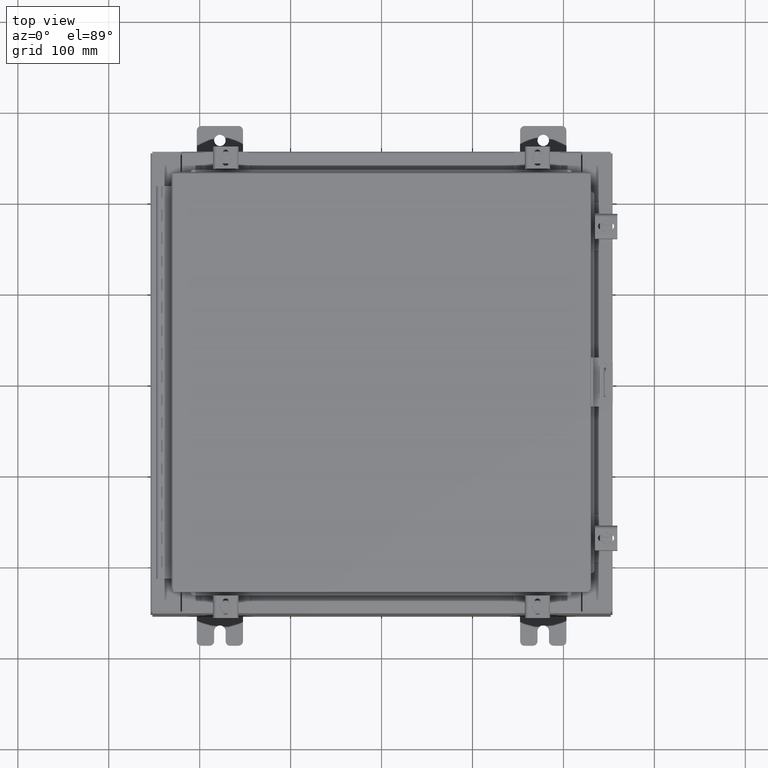
[diagram: clean part render]
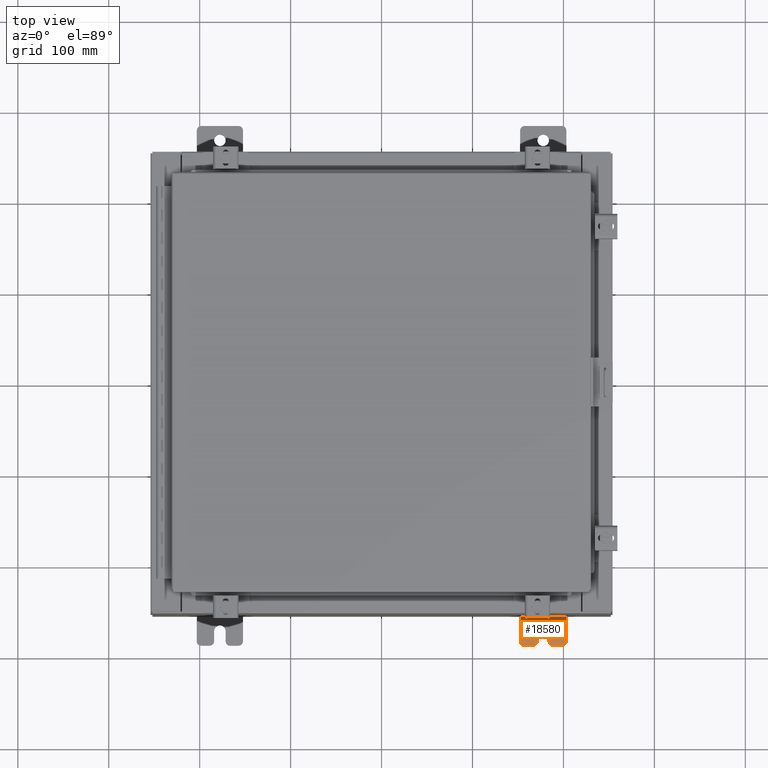
[diagram: same view with one face highlighted and labeled with its STEP entity id]
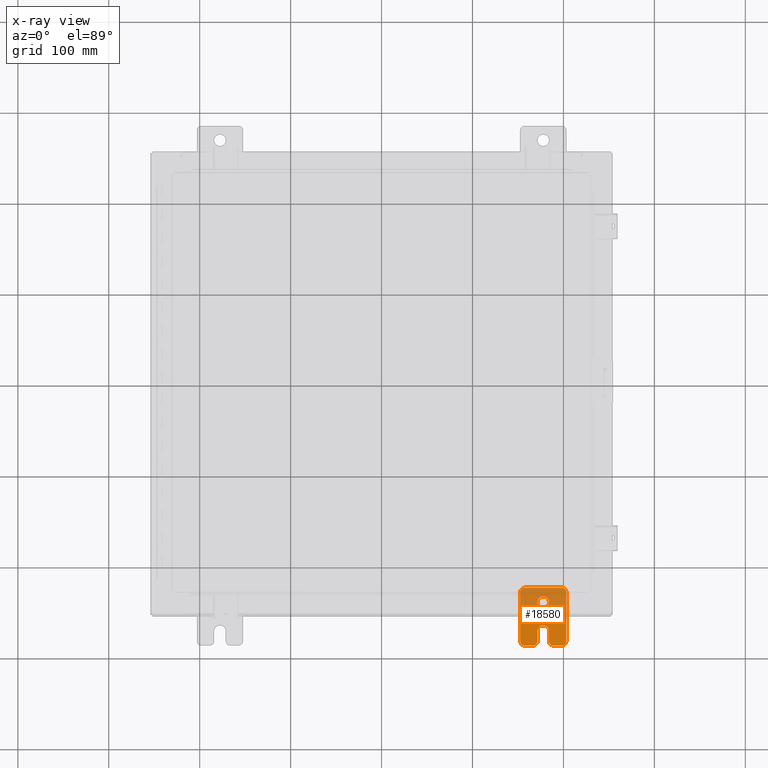
[diagram: x-ray of the same camera — body ghosted, the highlighted face saturated]
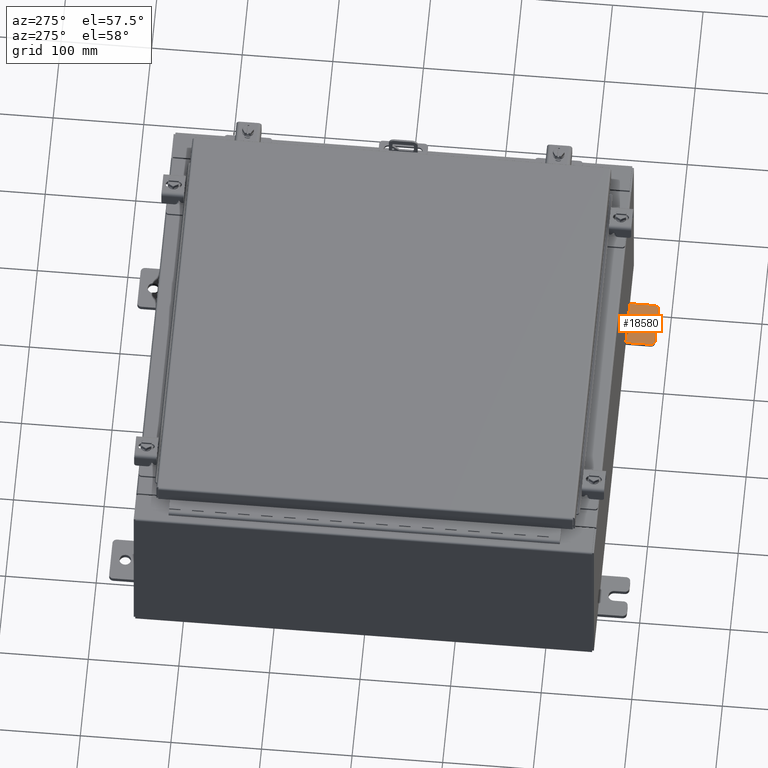
[diagram: same view with one face highlighted and labeled with its STEP entity id]
A machine part, top view. The second image highlights one B-rep face of the part: STEP entity #18580.
The next image is the same camera in x-ray: the body ghosted, the highlighted face saturated — about 53% of this face is hidden behind the body in this view.
A second angle (auxiliary view) of the same face is appended — the face is thin or edge-on in the first view.
In plain terms, the highlighted planar face has unit normal (0, 0, 1).
Its self-contained STEP definition (entity closure, byte-faithful):
#50 = LINE ( 'NONE', #25900, #22800 ) ;
#363 = EDGE_CURVE ( 'NONE', #13464, #22528, #11796, .T. ) ;
#553 = CARTESIAN_POINT ( 'NONE',  ( 0.0000000000000000000, -1.060000000000001600, 0.8099999999999978300 ) ) ;
#661 = AXIS2_PLACEMENT_3D ( 'NONE', #25391, #25788, #8164 ) ;
#839 = DIRECTION ( 'NONE',  ( 6.556435184794182400E-016, 1.000000000000000000, 0.0000000000000000000 ) ) ;
#1367 = EDGE_CURVE ( 'NONE', #28421, #29073, #27763, .T. ) ;
#1503 = LINE ( 'NONE', #24558, #12877 ) ;
#1622 = CARTESIAN_POINT ( 'NONE',  ( 4.780733988912460100E-016, -0.6249999999999993300, -0.2499999999999998600 ) ) ;
#1940 = VECTOR ( 'NONE', #839, 39.37007874015748100 ) ;
#2185 = LINE ( 'NONE', #19826, #13571 ) ;
#2505 = CARTESIAN_POINT ( 'NONE',  ( 0.0000000000000000000, 1.249999999999994700, -0.8100000000000092700 ) ) ;
#2765 = ORIENTED_EDGE ( 'NONE', *, *, #5763, .T. ) ;
#2828 = DIRECTION ( 'NONE',  ( 0.0000000000000000000, 0.0000000000000000000, -1.000000000000000000 ) ) ;
#2906 = CIRCLE ( 'NONE', #12947, 0.2499999999999999200 ) ;
#3237 = DIRECTION ( 'NONE',  ( 0.0000000000000000000, 1.639108796198553600E-015, 1.000000000000000000 ) ) ;
#3316 = CARTESIAN_POINT ( 'NONE',  ( 0.0000000000000000000, -1.250000000000002200, 0.9999999999999992200 ) ) ;
#3613 = EDGE_CURVE ( 'NONE', #4213, #17901, #17021, .T. ) ;
#3677 = CIRCLE ( 'NONE', #15709, 0.1900000000000011100 ) ;
#3826 = ORIENTED_EDGE ( 'NONE', *, *, #14750, .T. ) ;
#3832 = CARTESIAN_POINT ( 'NONE',  ( 0.0000000000000000000, -0.6249999999999992200, 0.2500000000000005000 ) ) ;
#4213 = VERTEX_POINT ( 'NONE', #13962 ) ;
#4895 = CARTESIAN_POINT ( 'NONE',  ( 4.039428427013647300E-016, 0.6249999999999992200, -9.783840404509077400E-018 ) ) ;
#4903 = ORIENTED_EDGE ( 'NONE', *, *, #11322, .T. ) ;
#4996 = CARTESIAN_POINT ( 'NONE',  ( 0.0000000000000000000, -1.060000000000001200, 0.9999999999999988900 ) ) ;
#5023 = CARTESIAN_POINT ( 'NONE',  ( 0.0000000000000000000, 0.0000000000000000000, 0.0000000000000000000 ) ) ;
#5496 = CARTESIAN_POINT ( 'NONE',  ( 0.0000000000000000000, -1.250000000000003100, 0.4400000000000020000 ) ) ;
#5761 = VECTOR ( 'NONE', #20543, 39.37007874015748100 ) ;
#5763 = EDGE_CURVE ( 'NONE', #29073, #20549, #12523, .T. ) ;
#5941 = EDGE_CURVE ( 'NONE', #9539, #28421, #2185, .T. ) ;
#6102 = DIRECTION ( 'NONE',  ( 1.000000000000000000, -0.0000000000000000000, -5.163192708025532000E-017 ) ) ;
#6448 = CARTESIAN_POINT ( 'NONE',  ( 0.0000000000000000000, -1.250000000000005300, -0.8100000000000047200 ) ) ;
#6458 = ORIENTED_EDGE ( 'NONE', *, *, #28623, .F. ) ;
#6468 = VECTOR ( 'NONE', #7878, 39.37007874015748100 ) ;
#6570 = LINE ( 'NONE', #12162, #1940 ) ;
#7018 = EDGE_CURVE ( 'NONE', #8802, #9539, #25622, .T. ) ;
#7083 = LINE ( 'NONE', #7741, #18494 ) ;
#7166 = DIRECTION ( 'NONE',  ( -5.163192708025533800E-017, 0.0000000000000000000, -1.000000000000000000 ) ) ;
#7275 = CIRCLE ( 'NONE', #26100, 0.2499999999999999200 ) ;
#7741 = CARTESIAN_POINT ( 'NONE',  ( 0.0000000000000000000, -1.250000000000005600, -1.000000000000006200 ) ) ;
#7878 = DIRECTION ( 'NONE',  ( 0.0000000000000000000, -1.639108796198553600E-015, -1.000000000000000000 ) ) ;
#7976 = CIRCLE ( 'NONE', #17937, 0.1900000000000011100 ) ;
#8164 = DIRECTION ( 'NONE',  ( 0.0000000000000000000, 0.0000000000000000000, -1.000000000000000000 ) ) ;
#8507 = ORIENTED_EDGE ( 'NONE', *, *, #17401, .T. ) ;
#8543 = ORIENTED_EDGE ( 'NONE', *, *, #1367, .T. ) ;
#8598 = CARTESIAN_POINT ( 'NONE',  ( 0.0000000000000000000, 1.249999999999997300, 0.8099999999999935000 ) ) ;
#8599 = EDGE_CURVE ( 'NONE', #12359, #4213, #7083, .T. ) ;
#8802 = VERTEX_POINT ( 'NONE', #3832 ) ;
#9024 = CARTESIAN_POINT ( 'NONE',  ( 4.780733988912460100E-016, -0.6249999999999993300, 5.858939755051854500E-017 ) ) ;
#9539 = VERTEX_POINT ( 'NONE', #1622 ) ;
#9611 = DIRECTION ( 'NONE',  ( 1.000000000000000000, 0.0000000000000000000, -0.0000000000000000000 ) ) ;
#9659 = VERTEX_POINT ( 'NONE', #13331 ) ;
#9734 = AXIS2_PLACEMENT_3D ( 'NONE', #11212, #27125, #13507 ) ;
#9806 = EDGE_LOOP ( 'NONE', ( #11830, #21237, #3826, #17662, #4903, #17298, #20359, #8543, #2765, #10202, #20055, #12845, #8507, #25690 ) ) ;
#10020 = DIRECTION ( 'NONE',  ( 0.0000000000000000000, 1.000000000000000000, -1.639108796198558100E-015 ) ) ;
#10202 = ORIENTED_EDGE ( 'NONE', *, *, #25338, .T. ) ;
#11212 = CARTESIAN_POINT ( 'NONE',  ( 0.0000000000000000000, -1.060000000000002100, 0.4400000000000016700 ) ) ;
#11260 = DIRECTION ( 'NONE',  ( 1.000000000000000000, 0.0000000000000000000, -0.0000000000000000000 ) ) ;
#11306 = DIRECTION ( 'NONE',  ( -6.523827964459551700E-016, -1.000000000000000000, 0.0000000000000000000 ) ) ;
#11322 = EDGE_CURVE ( 'NONE', #21968, #8802, #6570, .T. ) ;
#11790 = CIRCLE ( 'NONE', #20337, 0.1900000000000011100 ) ;
#11796 = LINE ( 'NONE', #21728, #5761 ) ;
#11830 = ORIENTED_EDGE ( 'NONE', *, *, #363, .T. ) ;
#12149 = CARTESIAN_POINT ( 'NONE',  ( 0.0000000000000000000, -1.250000000000004700, -0.4400000000000002200 ) ) ;
#12162 = CARTESIAN_POINT ( 'NONE',  ( 6.829619984160658000E-017, -1.250000000000003800, 0.2500000000000005000 ) ) ;
#12359 = VERTEX_POINT ( 'NONE', #21365 ) ;
#12523 = LINE ( 'NONE', #3316, #6468 ) ;
#12532 = DIRECTION ( 'NONE',  ( 1.000000000000000000, 0.0000000000000000000, -0.0000000000000000000 ) ) ;
#12845 = ORIENTED_EDGE ( 'NONE', *, *, #3613, .T. ) ;
#12877 = VECTOR ( 'NONE', #24653, 39.37007874015748100 ) ;
#12947 = AXIS2_PLACEMENT_3D ( 'NONE', #19736, #6102, #22015 ) ;
#13331 = CARTESIAN_POINT ( 'NONE',  ( 0.0000000000000000000, -1.250000000000002400, 0.8099999999999980500 ) ) ;
#13464 = VERTEX_POINT ( 'NONE', #26262 ) ;
#13507 = DIRECTION ( 'NONE',  ( 0.0000000000000000000, 0.0000000000000000000, -1.000000000000000000 ) ) ;
#13571 = VECTOR ( 'NONE', #17525, 39.37007874015748100 ) ;
#13578 = CARTESIAN_POINT ( 'NONE',  ( 0.0000000000000000000, 1.059999999999993600, -0.8100000000000089400 ) ) ;
#13962 = CARTESIAN_POINT ( 'NONE',  ( 0.0000000000000000000, 1.059999999999993400, -1.000000000000010000 ) ) ;
#14150 = FACE_OUTER_BOUND ( 'NONE', #9806, .T. ) ;
#14205 = VERTEX_POINT ( 'NONE', #8598 ) ;
#14402 = CARTESIAN_POINT ( 'NONE',  ( 1.928684683526964400E-016, -1.060000000000003400, -0.2499999999999994400 ) ) ;
#14564 = CARTESIAN_POINT ( 'NONE',  ( 4.168508244714285900E-016, 0.6249999999999992200, 0.2499999999999999200 ) ) ;
#14750 = EDGE_CURVE ( 'NONE', #9659, #20257, #1503, .T. ) ;
#15709 = AXIS2_PLACEMENT_3D ( 'NONE', #553, #16453, #2828 ) ;
#15893 = DIRECTION ( 'NONE',  ( 0.0000000000000000000, 0.0000000000000000000, -1.000000000000000000 ) ) ;
#16453 = DIRECTION ( 'NONE',  ( 1.000000000000000000, 0.0000000000000000000, -0.0000000000000000000 ) ) ;
#17021 = CIRCLE ( 'NONE', #18647, 0.1900000000000011100 ) ;
#17107 = CARTESIAN_POINT ( 'NONE',  ( 3.910348609313009100E-016, 0.6249999999999992200, -0.2499999999999999200 ) ) ;
#17298 = ORIENTED_EDGE ( 'NONE', *, *, #7018, .T. ) ;
#17401 = EDGE_CURVE ( 'NONE', #17901, #14205, #50, .T. ) ;
#17525 = DIRECTION ( 'NONE',  ( -6.556435184794182400E-016, -1.000000000000000000, -1.639108796198545600E-016 ) ) ;
#17662 = ORIENTED_EDGE ( 'NONE', *, *, #29489, .T. ) ;
#17901 = VERTEX_POINT ( 'NONE', #2505 ) ;
#17937 = AXIS2_PLACEMENT_3D ( 'NONE', #26151, #12532, #28471 ) ;
#18494 = VECTOR ( 'NONE', #10020, 39.37007874015748100 ) ;
#18580 = ADVANCED_FACE ( 'NONE', ( #26213, #14150 ), #27723, .T. ) ;
#18647 = AXIS2_PLACEMENT_3D ( 'NONE', #13578, #29523, #15893 ) ;
#19065 = CARTESIAN_POINT ( 'NONE',  ( 1.928684683526972300E-016, -1.060000000000002100, 0.2500000000000005000 ) ) ;
#19736 = CARTESIAN_POINT ( 'NONE',  ( 4.039428427013647300E-016, 0.6249999999999992200, -9.783840404509077400E-018 ) ) ;
#19826 = CARTESIAN_POINT ( 'NONE',  ( 4.780733988912460100E-016, -0.6249999999999993300, -0.2499999999999993900 ) ) ;
#20049 = EDGE_CURVE ( 'NONE', #23714, #26382, #7275, .T. ) ;
#20055 = ORIENTED_EDGE ( 'NONE', *, *, #8599, .T. ) ;
#20257 = VERTEX_POINT ( 'NONE', #5496 ) ;
#20337 = AXIS2_PLACEMENT_3D ( 'NONE', #24867, #11260, #27174 ) ;
#20359 = ORIENTED_EDGE ( 'NONE', *, *, #5941, .T. ) ;
#20543 = DIRECTION ( 'NONE',  ( 0.0000000000000000000, -1.000000000000000000, 1.639108796198558100E-015 ) ) ;
#20549 = VERTEX_POINT ( 'NONE', #6448 ) ;
#20833 = DIRECTION ( 'NONE',  ( 1.000000000000000000, -0.0000000000000000000, -5.163192708025532000E-017 ) ) ;
#21237 = ORIENTED_EDGE ( 'NONE', *, *, #23134, .T. ) ;
#21365 = CARTESIAN_POINT ( 'NONE',  ( 0.0000000000000000000, -1.060000000000004500, -1.000000000000006400 ) ) ;
#21728 = CARTESIAN_POINT ( 'NONE',  ( 0.0000000000000000000, 1.249999999999997600, 0.9999999999999951200 ) ) ;
#21968 = VERTEX_POINT ( 'NONE', #19065 ) ;
#22015 = DIRECTION ( 'NONE',  ( -5.163192708025533800E-017, 0.0000000000000000000, -1.000000000000000000 ) ) ;
#22176 = CIRCLE ( 'NONE', #9734, 0.1900000000000011400 ) ;
#22528 = VERTEX_POINT ( 'NONE', #4996 ) ;
#22800 = VECTOR ( 'NONE', #3237, 39.37007874015748100 ) ;
#23134 = EDGE_CURVE ( 'NONE', #22528, #9659, #3677, .T. ) ;
#23714 = VERTEX_POINT ( 'NONE', #14564 ) ;
#24558 = CARTESIAN_POINT ( 'NONE',  ( 0.0000000000000000000, -1.250000000000002200, 0.9999999999999992200 ) ) ;
#24653 = DIRECTION ( 'NONE',  ( 0.0000000000000000000, -1.639108796198553600E-015, -1.000000000000000000 ) ) ;
#24867 = CARTESIAN_POINT ( 'NONE',  ( 0.0000000000000000000, -1.060000000000004100, -0.8100000000000050500 ) ) ;
#24921 = DIRECTION ( 'NONE',  ( -1.000000000000000000, 6.523827964459549700E-016, 5.163192708025532000E-017 ) ) ;
#25338 = EDGE_CURVE ( 'NONE', #20549, #12359, #11790, .T. ) ;
#25391 = CARTESIAN_POINT ( 'NONE',  ( 0.0000000000000000000, -1.060000000000003400, -0.4400000000000005000 ) ) ;
#25523 = DIRECTION ( 'NONE',  ( -0.0000000000000000000, 0.0000000000000000000, -1.000000000000000000 ) ) ;
#25559 = AXIS2_PLACEMENT_3D ( 'NONE', #9024, #24921, #11306 ) ;
#25618 = ORIENTED_EDGE ( 'NONE', *, *, #20049, .F. ) ;
#25622 = CIRCLE ( 'NONE', #25559, 0.2499999999999999200 ) ;
#25690 = ORIENTED_EDGE ( 'NONE', *, *, #29170, .T. ) ;
#25788 = DIRECTION ( 'NONE',  ( 1.000000000000000000, 0.0000000000000000000, -0.0000000000000000000 ) ) ;
#25900 = CARTESIAN_POINT ( 'NONE',  ( 0.0000000000000000000, 1.249999999999994200, -1.000000000000010400 ) ) ;
#26100 = AXIS2_PLACEMENT_3D ( 'NONE', #4895, #20833, #7166 ) ;
#26151 = CARTESIAN_POINT ( 'NONE',  ( 0.0000000000000000000, 1.059999999999996300, 0.8099999999999938400 ) ) ;
#26213 = FACE_BOUND ( 'NONE', #26920, .T. ) ;
#26262 = CARTESIAN_POINT ( 'NONE',  ( 0.0000000000000000000, 1.059999999999996500, 0.9999999999999953400 ) ) ;
#26382 = VERTEX_POINT ( 'NONE', #17107 ) ;
#26920 = EDGE_LOOP ( 'NONE', ( #6458, #25618 ) ) ;
#27125 = DIRECTION ( 'NONE',  ( 1.000000000000000000, 0.0000000000000000000, -0.0000000000000000000 ) ) ;
#27174 = DIRECTION ( 'NONE',  ( 0.0000000000000000000, 0.0000000000000000000, -1.000000000000000000 ) ) ;
#27723 = PLANE ( 'NONE',  #28010 ) ;
#27763 = CIRCLE ( 'NONE', #661, 0.1900000000000011100 ) ;
#28010 = AXIS2_PLACEMENT_3D ( 'NONE', #5023, #9611, #25523 ) ;
#28421 = VERTEX_POINT ( 'NONE', #14402 ) ;
#28471 = DIRECTION ( 'NONE',  ( 0.0000000000000000000, 0.0000000000000000000, -1.000000000000000000 ) ) ;
#28623 = EDGE_CURVE ( 'NONE', #26382, #23714, #2906, .T. ) ;
#29073 = VERTEX_POINT ( 'NONE', #12149 ) ;
#29170 = EDGE_CURVE ( 'NONE', #14205, #13464, #7976, .T. ) ;
#29489 = EDGE_CURVE ( 'NONE', #20257, #21968, #22176, .T. ) ;
#29523 = DIRECTION ( 'NONE',  ( 1.000000000000000000, 0.0000000000000000000, -0.0000000000000000000 ) ) ;